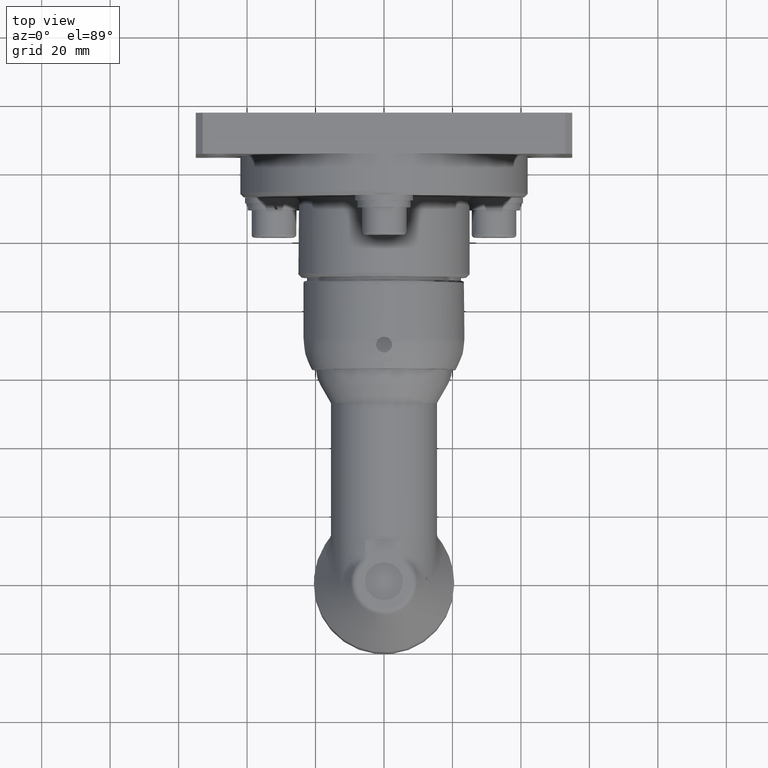
[diagram: clean part render]
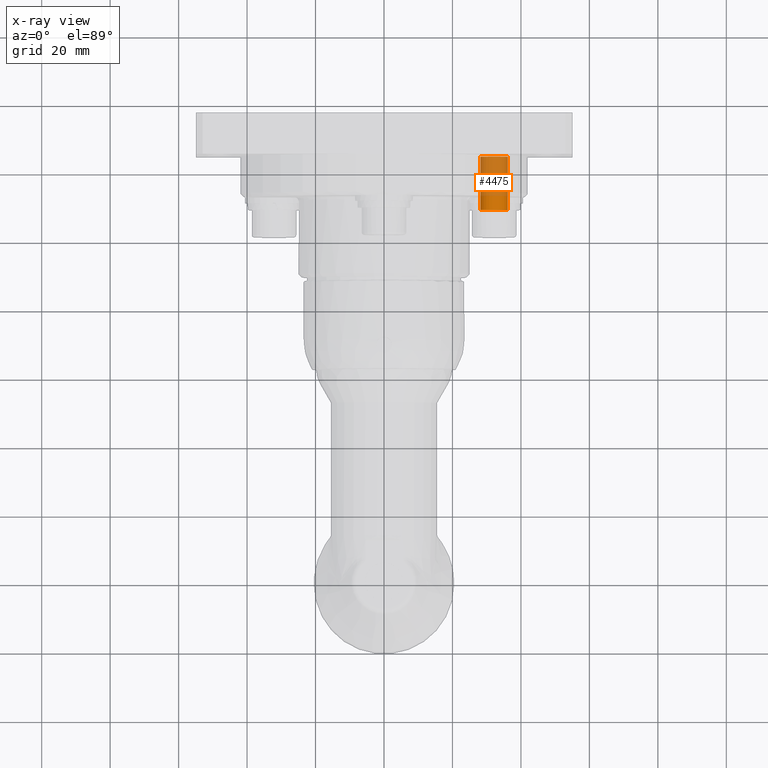
[diagram: x-ray — body ghosted, one internal face saturated and labeled with its STEP entity id]
A machine part, top view, then the same camera in x-ray: the body is ghosted and one INTERNAL B-rep face — a face not visible from any outside direction — is saturated and labeled: STEP entity #4475.
In plain terms, the highlighted cylindrical surface (bore or boss wall) has radius 4 mm, axis along (0, 1, -0).
Its self-contained STEP definition (entity closure, byte-faithful):
#374=LINE('',#9194,#581);
#581=VECTOR('',#6519,4.);
#664=CYLINDRICAL_SURFACE('',#5103,4.);
#957=FACE_OUTER_BOUND('',#1256,.T.);
#1256=EDGE_LOOP('',(#4089,#4090,#4091,#4092,#4093,#4094));
#1534=CIRCLE('',#4921,4.);
#1620=CIRCLE('',#5099,4.);
#1621=CIRCLE('',#5100,4.);
#1622=CIRCLE('',#5101,4.);
#1958=VERTEX_POINT('',#8726);
#2077=VERTEX_POINT('',#9185);
#2078=VERTEX_POINT('',#9187);
#2079=VERTEX_POINT('',#9189);
#2557=EDGE_CURVE('',#1958,#1958,#1534,.T.);
#2752=EDGE_CURVE('',#2077,#2078,#1620,.T.);
#2753=EDGE_CURVE('',#2078,#2079,#1621,.T.);
#2754=EDGE_CURVE('',#2079,#2077,#1622,.T.);
#2755=EDGE_CURVE('',#1958,#2079,#374,.T.);
#4089=ORIENTED_EDGE('',*,*,#2557,.F.);
#4090=ORIENTED_EDGE('',*,*,#2755,.T.);
#4091=ORIENTED_EDGE('',*,*,#2753,.F.);
#4092=ORIENTED_EDGE('',*,*,#2752,.F.);
#4093=ORIENTED_EDGE('',*,*,#2754,.F.);
#4094=ORIENTED_EDGE('',*,*,#2755,.F.);
#4475=ADVANCED_FACE('',(#957),#664,.T.);
#4921=AXIS2_PLACEMENT_3D('',#8727,#6079,#6080);
#5099=AXIS2_PLACEMENT_3D('',#9188,#6509,#6510);
#5100=AXIS2_PLACEMENT_3D('',#9190,#6511,#6512);
#5101=AXIS2_PLACEMENT_3D('',#9191,#6513,#6514);
#5103=AXIS2_PLACEMENT_3D('',#9193,#6517,#6518);
#6079=DIRECTION('center_axis',(-4.73983281220064E-16,1.,-1.88737914186277E-15));
#6080=DIRECTION('ref_axis',(1.,-1.08599117800846E-14,-1.88434337276347E-15));
#6509=DIRECTION('center_axis',(-1.08592335845875E-14,-1.,1.88434337276345E-15));
#6510=DIRECTION('ref_axis',(-1.,1.08599117800846E-14,1.76187869284874E-15));
#6511=DIRECTION('center_axis',(-1.08592335845875E-14,-1.,1.88434337276345E-15));
#6512=DIRECTION('ref_axis',(-1.,1.08599117800846E-14,1.76187869284874E-15));
#6513=DIRECTION('center_axis',(-1.08592335845875E-14,-1.,1.88434337276345E-15));
#6514=DIRECTION('ref_axis',(-1.,1.08599117800846E-14,1.76187869284874E-15));
#6517=DIRECTION('center_axis',(1.08592335845875E-14,1.,-1.88434337276345E-15));
#6518=DIRECTION('ref_axis',(1.,-1.08599117800846E-14,-1.88434337276347E-15));
#6519=DIRECTION('',(-1.08592335845875E-14,-1.,1.88434337276345E-15));
#8726=CARTESIAN_POINT('',(28.147631570377,124.499999999999,-11.0693172515436));
#8727=CARTESIAN_POINT('Origin',(32.147631570377,124.499999999999,-11.0693172515436));
#9185=CARTESIAN_POINT('',(32.1476315703768,109.,-15.0693172515435));
#9187=CARTESIAN_POINT('',(36.1476315703768,109.,-11.0693172515435));
#9188=CARTESIAN_POINT('Origin',(32.1476315703768,109.,-11.0693172515435));
#9189=CARTESIAN_POINT('',(28.1476315703768,109.,-11.0693172515435));
#9190=CARTESIAN_POINT('Origin',(32.1476315703768,109.,-11.0693172515435));
#9191=CARTESIAN_POINT('Origin',(32.1476315703768,109.,-11.0693172515435));
#9193=CARTESIAN_POINT('Origin',(32.1476315703769,123.275,-11.0693172515436));
#9194=CARTESIAN_POINT('',(28.1476315703769,123.275,-11.0693172515435));